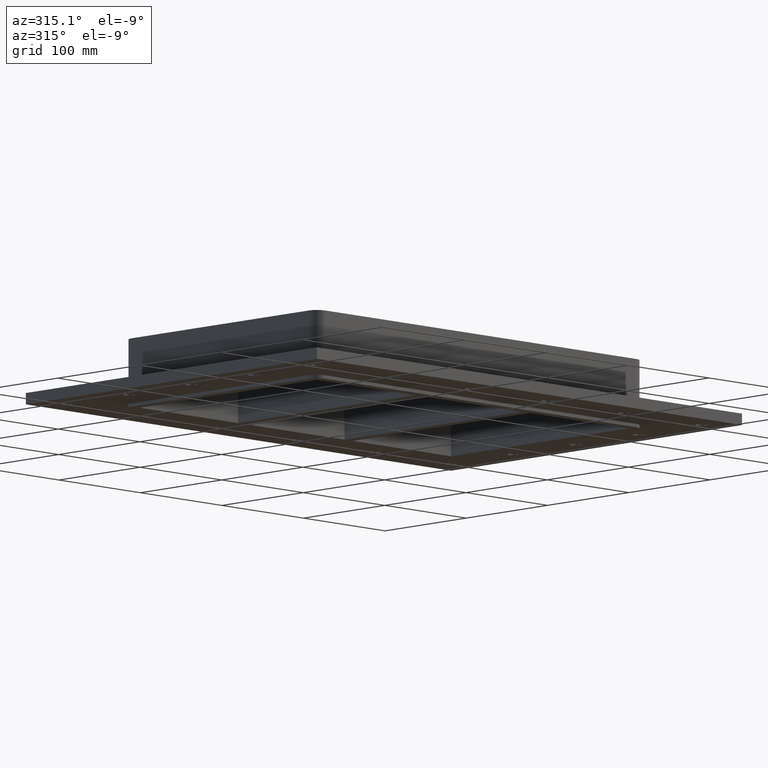
[diagram: clean part render]
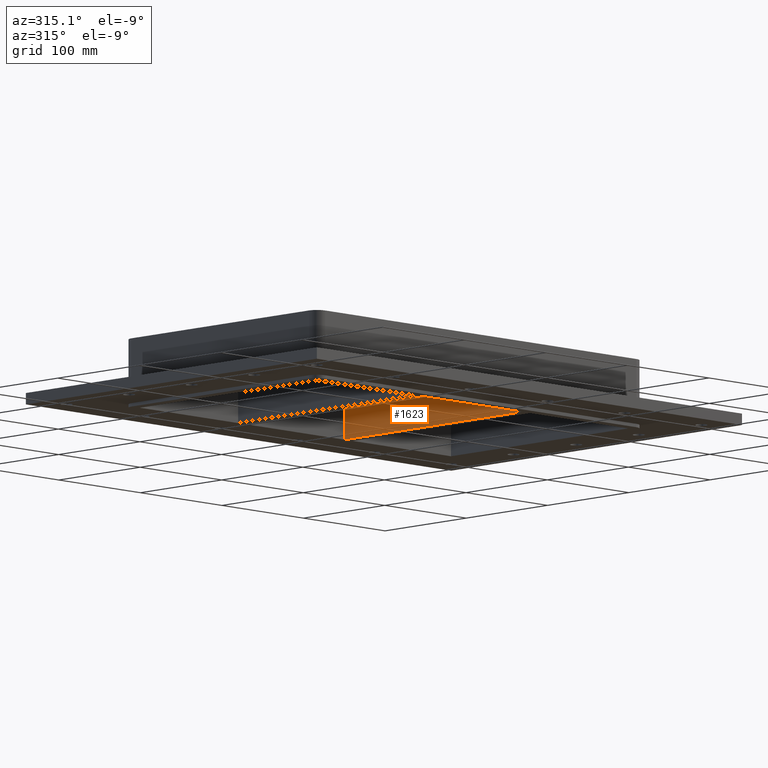
[diagram: same view with one face highlighted and labeled with its STEP entity id]
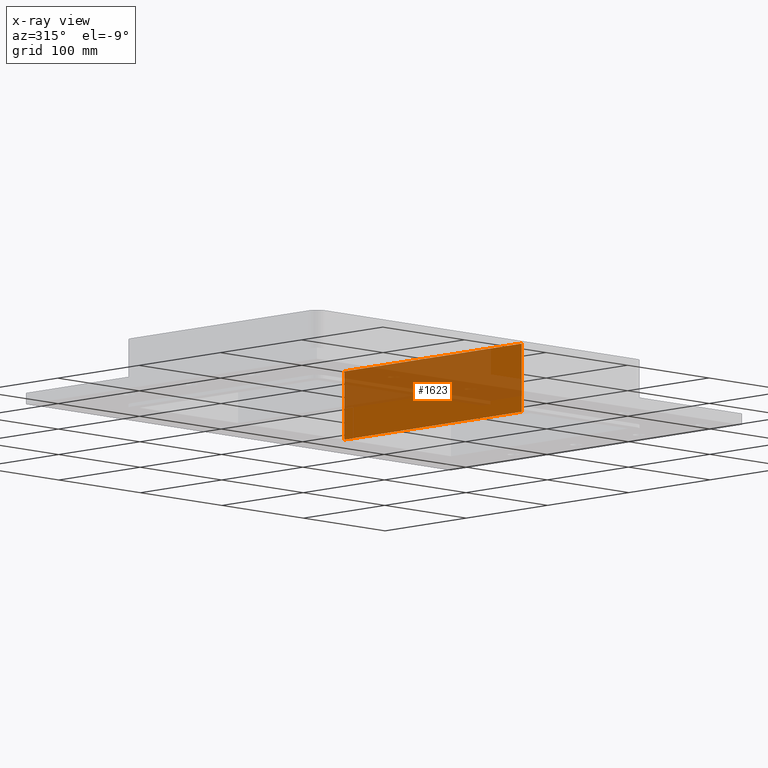
[diagram: x-ray of the same camera — body ghosted, the highlighted face saturated]
A machine part, auxiliary view. The second image highlights one B-rep face of the part: STEP entity #1623.
The next image is the same camera in x-ray: the body ghosted, the highlighted face saturated — about 57% of this face is hidden behind the body in this view.
In plain terms, the highlighted planar face has unit normal (1, 0, 0).
Its self-contained STEP definition (entity closure, byte-faithful):
#1282=CARTESIAN_POINT('',(60.249999999999986,-109.00000000000003,-30.0));
#1283=VERTEX_POINT('',#1282);
#1290=CARTESIAN_POINT('',(60.249999999999943,108.99999999999999,-30.0));
#1291=VERTEX_POINT('',#1290);
#1292=CARTESIAN_POINT('',(60.249999999999986,-109.0,-30.0));
#1293=DIRECTION('',(0.0,1.0,0.0));
#1294=VECTOR('',#1293,218.0);
#1295=LINE('',#1292,#1294);
#1296=EDGE_CURVE('',#1283,#1291,#1295,.T.);
#1583=CARTESIAN_POINT('',(60.249999999999986,-109.00000000000003,30.0));
#1584=VERTEX_POINT('',#1583);
#1591=CARTESIAN_POINT('',(60.249999999999986,-109.00000000000003,30.0));
#1592=DIRECTION('',(0.0,0.0,-1.0));
#1593=VECTOR('',#1592,60.0);
#1594=LINE('',#1591,#1593);
#1595=EDGE_CURVE('',#1584,#1283,#1594,.T.);
#1600=CARTESIAN_POINT('',(60.249999999999943,108.99999999999999,30.0));
#1601=DIRECTION('',(1.0,0.0,0.0));
#1602=DIRECTION('',(0.0,-1.0,0.0));
#1603=AXIS2_PLACEMENT_3D('',#1600,#1601,#1602);
#1604=PLANE('',#1603);
#1605=ORIENTED_EDGE('',*,*,#1296,.F.);
#1606=ORIENTED_EDGE('',*,*,#1595,.F.);
#1607=CARTESIAN_POINT('',(60.249999999999943,108.99999999999999,30.0));
#1608=VERTEX_POINT('',#1607);
#1609=CARTESIAN_POINT('',(60.249999999999936,108.99999999999999,30.0));
#1610=DIRECTION('',(0.0,-1.0,0.0));
#1611=VECTOR('',#1610,218.0);
#1612=LINE('',#1609,#1611);
#1613=EDGE_CURVE('',#1608,#1584,#1612,.T.);
#1614=ORIENTED_EDGE('',*,*,#1613,.F.);
#1615=CARTESIAN_POINT('',(60.249999999999943,108.99999999999999,30.0));
#1616=DIRECTION('',(0.0,0.0,-1.0));
#1617=VECTOR('',#1616,60.0);
#1618=LINE('',#1615,#1617);
#1619=EDGE_CURVE('',#1608,#1291,#1618,.T.);
#1620=ORIENTED_EDGE('',*,*,#1619,.T.);
#1621=EDGE_LOOP('',(#1605,#1606,#1614,#1620));
#1622=FACE_OUTER_BOUND('',#1621,.T.);
#1623=ADVANCED_FACE('',(#1622),#1604,.F.);